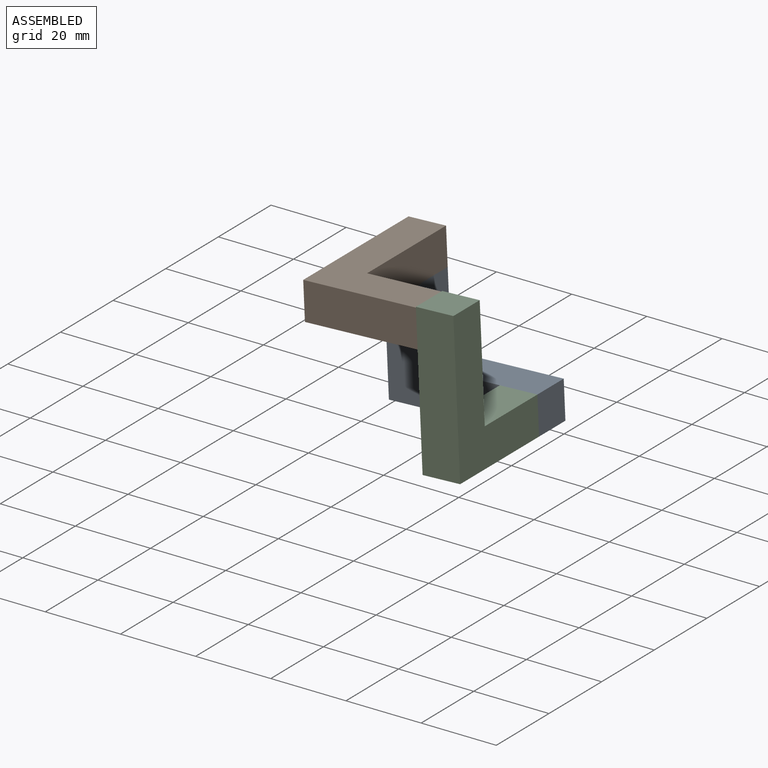
[diagram: assembled view]
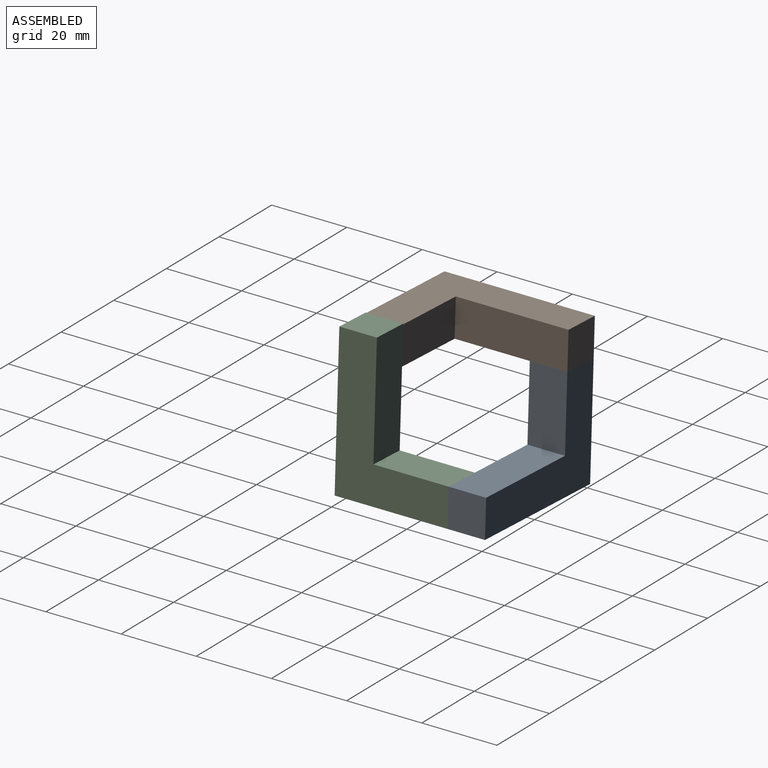
[diagram: assembled view, second angle]
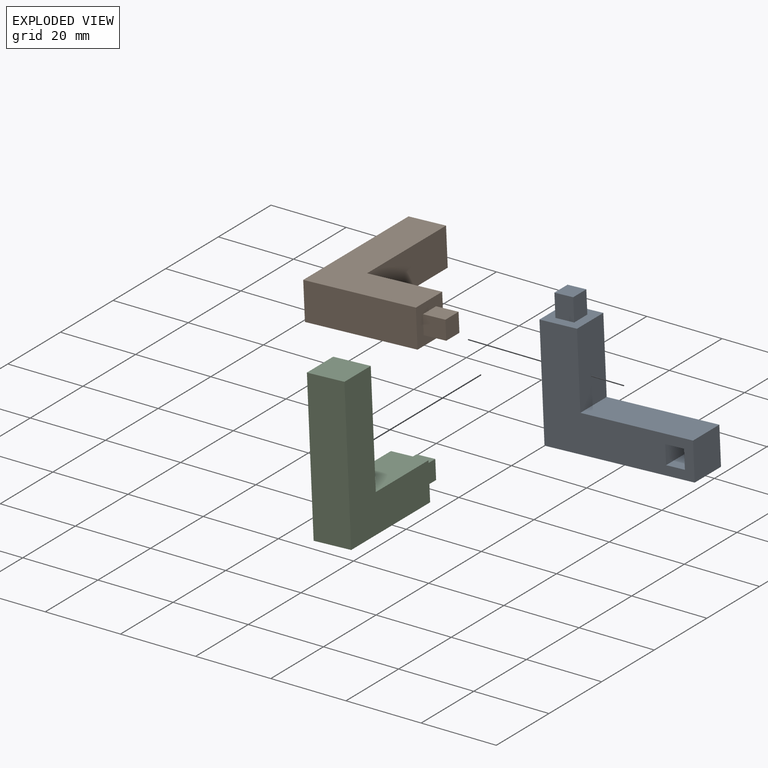
[diagram: exploded view]
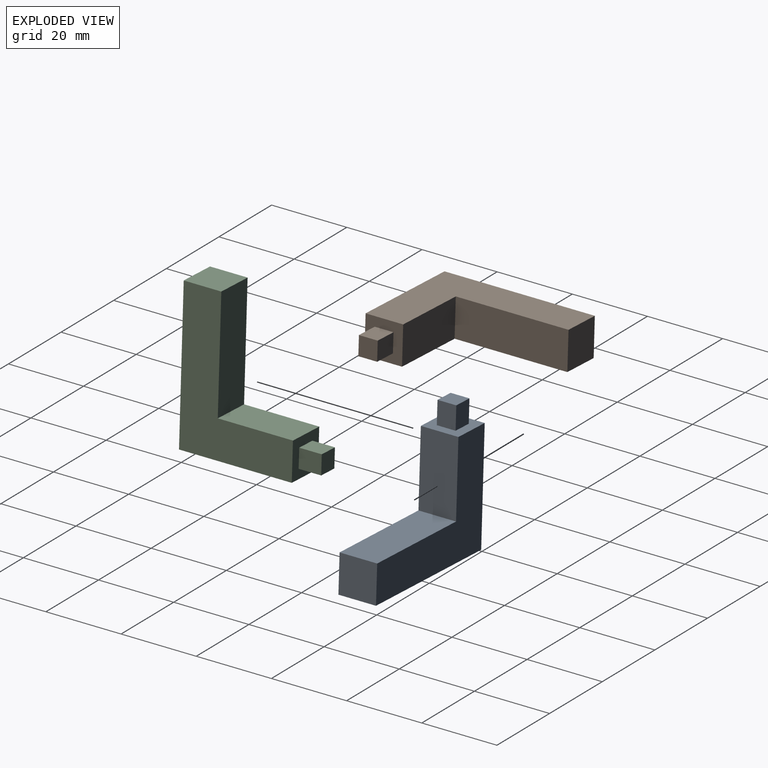
[diagram: exploded view, second angle]
ASSEMBLY  parts=3 mates=5
PART A: 18 faces, bbox 40x10x36 mm
  f0: plane 10x10mm, normal (0,0,1), area 75mm2, adj f1,f2,f3,f4,f13,f14,f15,f16
  f1: plane 40x30mm, normal (0,-1,0), area 575mm2, adj f0,f2,f4,f5,f6,f7,f8,f9
  f2: plane 20x10mm, normal (1,0,0), area 200mm2, adj f0,f1,f3,f6
  f3: plane 40x30mm, normal (0,1,0), area 600mm2, adj f0,f2,f4,f5,f6,f7
  f4: plane 30x10mm, normal (-1,0,0), area 300mm2, adj f0,f1,f3,f5
  f5: plane 40x10mm, normal (0,0,-1), area 400mm2, adj f1,f3,f4,f7
  f6: plane 30x10mm, normal (0,0,1), area 300mm2, adj f1,f2,f3,f7
  f7: plane 10x10mm, normal (1,0,0), area 100mm2, adj f1,f3,f5,f6
  f8: plane 8x5mm, normal (0,0,-1), area 40mm2, adj f1,f9,f11,f12
  f9: plane 8x5mm, normal (1,0,0), area 40mm2, adj f1,f8,f10,f12
  f10: plane 8x5mm, normal (0,0,1), area 40mm2, adj f1,f9,f11,f12
  f11: plane 8x5mm, normal (-1,0,0), area 40mm2, adj f1,f8,f10,f12
  f12: plane 5x5mm, normal (0,-1,0), area 25mm2, adj f8,f9,f10,f11
  f13: plane 6x5mm, normal (0,1,0), area 30mm2, adj f0,f14,f16,f17
  f14: plane 6x5mm, normal (-1,0,0), area 30mm2, adj f0,f13,f15,f17
  f15: plane 6x5mm, normal (0,-1,0), area 30mm2, adj f0,f14,f16,f17
  f16: plane 6x5mm, normal (1,0,0), area 30mm2, adj f0,f13,f15,f17
  f17: plane 5x5mm, normal (0,0,1), area 25mm2, adj f13,f14,f15,f16
PART B: same geometry as A
PART C: same geometry as A
PLACE A rot(axis=(0,-1,0),2.6deg) t=(-15.1,-4.29,6.88)mm fixed
PLACE B rot(axis=(0.57,0.57,0.59),118.5deg) t=(-21.66,-34.29,41.43)mm
PLACE C rot(axis=(-0.56,-0.59,-0.59),121.5deg) t=(14.64,-39.29,13.23)mm
MATE planar C.f0 <-> A.f1  axis (0,1,0) through (14.87,-9.29,8.23)mm
MATE planar B.f4 <-> C.f5  axis (0,-1,0) through (-6.67,-39.29,42.1)mm
MATE planar C.f2 <-> A.f6  axis (-0.04,0,1) through (14.42,-9.29,18.22)mm
MATE planar A.f7 <-> C.f3  axis (1,0,0.04) through (19.64,-4.29,13.45)mm
MATE planar B.f5 <-> A.f4  axis (-1,0,-0.04) through (-21.66,-19.29,41.43)mm
